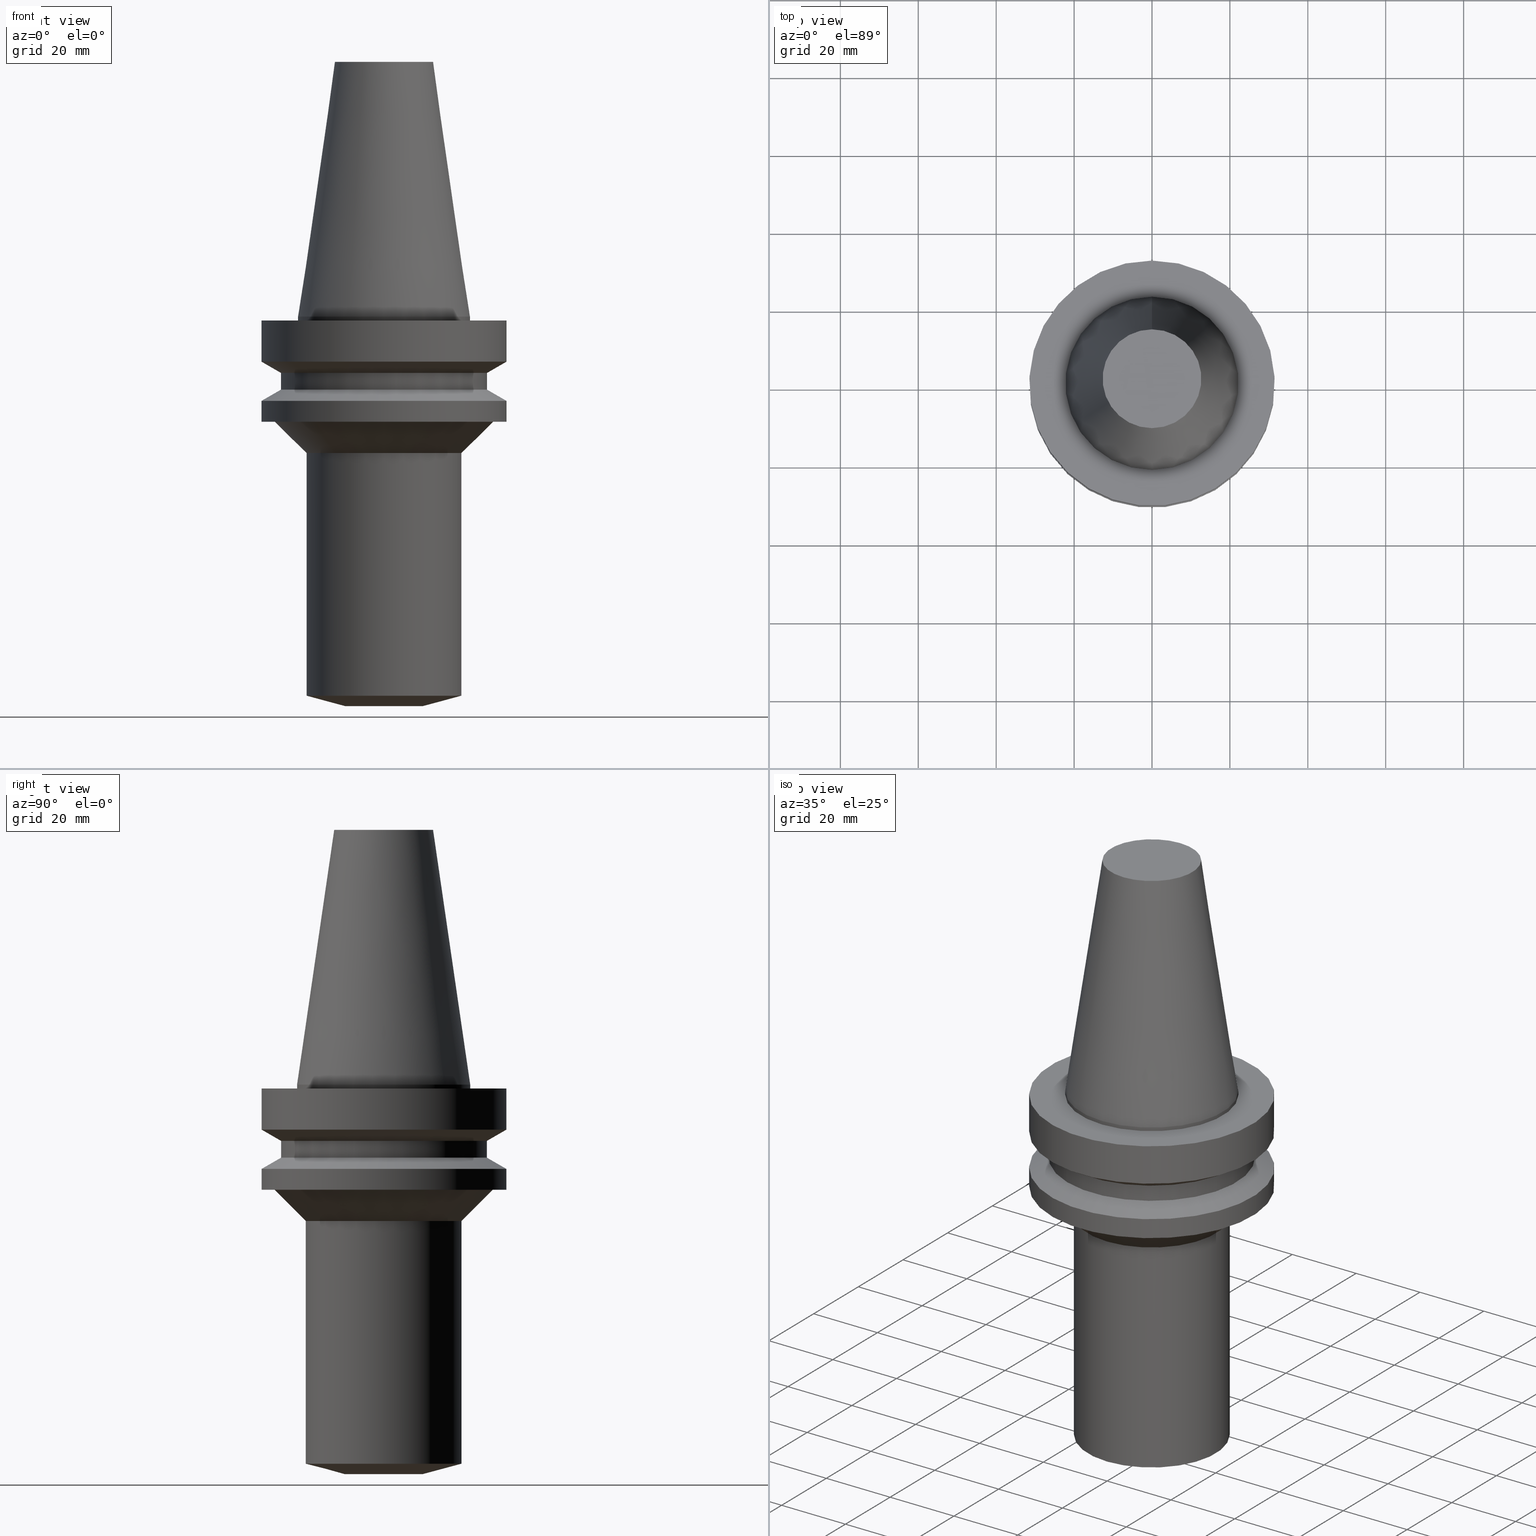
[diagram: canonical four-view strip — front | top / right | iso, engineering-drawing reading convention]
A machine part, canonical four-view strip (front | top / right | iso — engineering-drawing reading convention). The complete STEP part file that produces these views, byte-faithful:
ISO-10303-21;
HEADER;
FILE_DESCRIPTION((''),'1');
FILE_NAME('T:/21_DXF\X2\30C730FC30BF4F5C621057FA6E96\X0\/BBT40M-BSL16-100.stp','2017-05-09T05:51:11',(''),(''),'Spatial Interop R21 SP3','Kubotek KeyCreator 2011 V10.0.2 (22737)',' ');
FILE_SCHEMA(('automotive_design'));
ENDSEC;
DATA;
#1=MECHANICAL_DESIGN_GEOMETRIC_PRESENTATION_REPRESENTATION(' ',(#10,#11,#12,#13,#14,#15,#16,#17,#18,#19,#20,#21,#22,#23,#24,#25,#26,#27,#28,#29,#30,#31,#32,#33,#34,#35,#36,#37),#6);
#2=PRODUCT_DEFINITION_CONTEXT('',#38,'design');
#3=APPLICATION_PROTOCOL_DEFINITION('INTERNATIONAL STANDARD','automotive_design',1994,#38);
#4=PRODUCT_CATEGORY_RELATIONSHIP('NONE','NONE',#39,#40);
#5=SHAPE_DEFINITION_REPRESENTATION(#41,#42);
#6= (GEOMETRIC_REPRESENTATION_CONTEXT(3)GLOBAL_UNCERTAINTY_ASSIGNED_CONTEXT((#45))GLOBAL_UNIT_ASSIGNED_CONTEXT((#47,#48,#49))REPRESENTATION_CONTEXT('NONE','WORKSPACE'));
#10=STYLED_ITEM('',(#51),#52);
#11=STYLED_ITEM('',(#53),#54);
#12=STYLED_ITEM('',(#55),#56);
#13=STYLED_ITEM('',(#57,#58),#59);
#14=STYLED_ITEM('',(#60,#61),#62);
#15=STYLED_ITEM('',(#63),#64);
#16=STYLED_ITEM('',(#65),#66);
#17=STYLED_ITEM('',(#67),#68);
#18=STYLED_ITEM('',(#69,#70),#71);
#19=STYLED_ITEM('',(#72,#73),#74);
#20=STYLED_ITEM('',(#75),#76);
#21=STYLED_ITEM('',(#77,#78),#79);
#22=STYLED_ITEM('',(#80,#81),#82);
#23=STYLED_ITEM('',(#83,#84),#85);
#24=STYLED_ITEM('',(#86,#87),#88);
#25=STYLED_ITEM('',(#89,#90),#91);
#26=STYLED_ITEM('',(#92,#93),#94);
#27=STYLED_ITEM('',(#95,#96),#97);
#28=STYLED_ITEM('',(#98,#99),#100);
#29=STYLED_ITEM('',(#101,#102),#103);
#30=STYLED_ITEM('',(#104),#105);
#31=STYLED_ITEM('',(#106,#107),#108);
#32=STYLED_ITEM('',(#109),#110);
#33=STYLED_ITEM('',(#111),#112);
#34=STYLED_ITEM('',(#113),#114);
#35=STYLED_ITEM('',(#115,#116),#117);
#36=STYLED_ITEM('',(#118),#119);
#37=STYLED_ITEM('',(#120),#121);
#38=APPLICATION_CONTEXT(' ');
#39=PRODUCT_CATEGORY('part','NONE');
#40=PRODUCT_RELATED_PRODUCT_CATEGORY('detail',' ',(#122));
#41=PRODUCT_DEFINITION_SHAPE('NONE','NONE',#123);
#42=ADVANCED_BREP_SHAPE_REPRESENTATION('Unnamed[1]',(#85,#124),#6);
#45=UNCERTAINTY_MEASURE_WITH_UNIT(LENGTH_MEASURE(1.0E-006),#47,'','');
#47= (CONVERSION_BASED_UNIT('MILLIMETRE',#127)LENGTH_UNIT()NAMED_UNIT(#130));
#48= (NAMED_UNIT(#132)PLANE_ANGLE_UNIT()SI_UNIT($,.RADIAN.));
#49= (NAMED_UNIT(#132)SOLID_ANGLE_UNIT()SI_UNIT($,.STERADIAN.));
#51=PRESENTATION_STYLE_ASSIGNMENT((#138));
#52=EDGE_CURVE('Unnamed[1]',#139,#139,#140,.T.);
#53=PRESENTATION_STYLE_ASSIGNMENT((#141));
#54=EDGE_CURVE('Unnamed[1]',#142,#142,#143,.T.);
#55=PRESENTATION_STYLE_ASSIGNMENT((#144));
#56=EDGE_CURVE('Unnamed[1]',#145,#145,#146,.T.);
#57=PRESENTATION_STYLE_ASSIGNMENT((#147));
#58=PRESENTATION_STYLE_ASSIGNMENT((#148));
#59=ADVANCED_FACE('Unnamed[1]',(#149),#150,.T.);
#60=PRESENTATION_STYLE_ASSIGNMENT((#151));
#61=PRESENTATION_STYLE_ASSIGNMENT((#152));
#62=ADVANCED_FACE('Unnamed[1]',(#153,#154),#155,.T.);
#63=PRESENTATION_STYLE_ASSIGNMENT((#156));
#64=EDGE_CURVE('Unnamed[1]',#157,#157,#158,.T.);
#65=PRESENTATION_STYLE_ASSIGNMENT((#159));
#66=EDGE_CURVE('Unnamed[1]',#160,#160,#161,.T.);
#67=PRESENTATION_STYLE_ASSIGNMENT((#162));
#68=EDGE_CURVE('Unnamed[1]',#163,#163,#164,.T.);
#69=PRESENTATION_STYLE_ASSIGNMENT((#165));
#70=PRESENTATION_STYLE_ASSIGNMENT((#166));
#71=ADVANCED_FACE('Unnamed[1]',(#167,#168),#169,.T.);
#72=PRESENTATION_STYLE_ASSIGNMENT((#170));
#73=PRESENTATION_STYLE_ASSIGNMENT((#171));
#74=ADVANCED_FACE('Unnamed[1]',(#172,#173),#174,.T.);
#75=PRESENTATION_STYLE_ASSIGNMENT((#175));
#76=EDGE_CURVE('Unnamed[1]',#176,#176,#177,.T.);
#77=PRESENTATION_STYLE_ASSIGNMENT((#178));
#78=PRESENTATION_STYLE_ASSIGNMENT((#179));
#79=ADVANCED_FACE('Unnamed[1]',(#180,#181),#182,.T.);
#80=PRESENTATION_STYLE_ASSIGNMENT((#183));
#81=PRESENTATION_STYLE_ASSIGNMENT((#184));
#82=ADVANCED_FACE('Unnamed[1]',(#185,#186),#187,.T.);
#83=PRESENTATION_STYLE_ASSIGNMENT((#188));
#84=PRESENTATION_STYLE_ASSIGNMENT((#189));
#85=MANIFOLD_SOLID_BREP('Unnamed[1]',#190);
#86=PRESENTATION_STYLE_ASSIGNMENT((#191));
#87=PRESENTATION_STYLE_ASSIGNMENT((#192));
#88=ADVANCED_FACE('Unnamed[1]',(#193,#194),#195,.T.);
#89=PRESENTATION_STYLE_ASSIGNMENT((#196));
#90=PRESENTATION_STYLE_ASSIGNMENT((#197));
#91=ADVANCED_FACE('Unnamed[1]',(#198,#199),#200,.T.);
#92=PRESENTATION_STYLE_ASSIGNMENT((#201));
#93=PRESENTATION_STYLE_ASSIGNMENT((#202));
#94=ADVANCED_FACE('Unnamed[1]',(#203,#204),#205,.T.);
#95=PRESENTATION_STYLE_ASSIGNMENT((#206));
#96=PRESENTATION_STYLE_ASSIGNMENT((#207));
#97=ADVANCED_FACE('Unnamed[1]',(#208,#209),#210,.T.);
#98=PRESENTATION_STYLE_ASSIGNMENT((#211));
#99=PRESENTATION_STYLE_ASSIGNMENT((#212));
#100=ADVANCED_FACE('Unnamed[1]',(#213,#214),#215,.T.);
#101=PRESENTATION_STYLE_ASSIGNMENT((#216));
#102=PRESENTATION_STYLE_ASSIGNMENT((#217));
#103=ADVANCED_FACE('Unnamed[1]',(#218,#219),#220,.T.);
#104=PRESENTATION_STYLE_ASSIGNMENT((#221));
#105=EDGE_CURVE('Unnamed[1]',#222,#222,#223,.T.);
#106=PRESENTATION_STYLE_ASSIGNMENT((#224));
#107=PRESENTATION_STYLE_ASSIGNMENT((#225));
#108=ADVANCED_FACE('Unnamed[1]',(#226),#227,.T.);
#109=PRESENTATION_STYLE_ASSIGNMENT((#228));
#110=EDGE_CURVE('Unnamed[1]',#229,#229,#230,.T.);
#111=PRESENTATION_STYLE_ASSIGNMENT((#231));
#112=EDGE_CURVE('Unnamed[1]',#232,#232,#233,.T.);
#113=PRESENTATION_STYLE_ASSIGNMENT((#234));
#114=EDGE_CURVE('Unnamed[1]',#235,#235,#236,.T.);
#115=PRESENTATION_STYLE_ASSIGNMENT((#237));
#116=PRESENTATION_STYLE_ASSIGNMENT((#238));
#117=ADVANCED_FACE('Unnamed[1]',(#239,#240),#241,.T.);
#118=PRESENTATION_STYLE_ASSIGNMENT((#242));
#119=EDGE_CURVE('Unnamed[1]',#243,#243,#244,.T.);
#120=PRESENTATION_STYLE_ASSIGNMENT((#245));
#121=EDGE_CURVE('Unnamed[1]',#246,#246,#247,.T.);
#122=PRODUCT('Unnamed[1]','Unnamed[1]','PART-Unnamed[1]-DESC',(#248));
#123=PRODUCT_DEFINITION('NONE','NONE',#249,#2);
#124=AXIS2_PLACEMENT_3D('',#250,#251,#252);
#127=LENGTH_MEASURE_WITH_UNIT(LENGTH_MEASURE(1.0),#253);
#130=DIMENSIONAL_EXPONENTS(1.0,0.0,0.0,0.0,0.0,0.0,0.0);
#132=DIMENSIONAL_EXPONENTS(0.0,0.0,0.0,0.0,0.0,0.0,0.0);
#138=CURVE_STYLE('',#254,POSITIVE_LENGTH_MEASURE(1000.0),#255);
#139=VERTEX_POINT('',#256);
#140=CIRCLE('',#257,22.225);
#141=CURVE_STYLE('',#258,POSITIVE_LENGTH_MEASURE(1000.0),#259);
#142=VERTEX_POINT('',#260);
#143=CIRCLE('',#261,26.5);
#144=CURVE_STYLE('',#262,POSITIVE_LENGTH_MEASURE(1000.0),#263);
#145=VERTEX_POINT('',#264);
#146=CIRCLE('',#265,22.225);
#147=SURFACE_STYLE_USAGE(.BOTH.,#266);
#148=CURVE_STYLE('',#267,POSITIVE_LENGTH_MEASURE(1000.0),#268);
#149=FACE_OUTER_BOUND('',#269,.T.);
#150=PLANE('',#270);
#151=SURFACE_STYLE_USAGE(.BOTH.,#271);
#152=CURVE_STYLE('',#272,POSITIVE_LENGTH_MEASURE(1000.0),#273);
#153=FACE_BOUND('',#274,.T.);
#154=FACE_BOUND('',#275,.T.);
#155=CYLINDRICAL_SURFACE('',#276,22.225);
#156=CURVE_STYLE('',#277,POSITIVE_LENGTH_MEASURE(1000.0),#278);
#157=VERTEX_POINT('',#279);
#158=CIRCLE('',#280,31.5000000000004);
#159=CURVE_STYLE('',#281,POSITIVE_LENGTH_MEASURE(1000.0),#282);
#160=VERTEX_POINT('',#283);
#161=CIRCLE('',#284,31.5000000000007);
#162=CURVE_STYLE('',#285,POSITIVE_LENGTH_MEASURE(1000.0),#286);
#163=VERTEX_POINT('',#287);
#164=CIRCLE('',#288,28.0000000000002);
#165=SURFACE_STYLE_USAGE(.BOTH.,#289);
#166=CURVE_STYLE('',#290,POSITIVE_LENGTH_MEASURE(1000.0),#291);
#167=FACE_BOUND('',#292,.T.);
#168=FACE_BOUND('',#293,.T.);
#169=CYLINDRICAL_SURFACE('',#294,31.5000000000005);
#170=SURFACE_STYLE_USAGE(.BOTH.,#295);
#171=CURVE_STYLE('',#296,POSITIVE_LENGTH_MEASURE(1000.0),#297);
#172=FACE_BOUND('',#298,.T.);
#173=FACE_OUTER_BOUND('',#299,.T.);
#174=PLANE('',#300);
#175=CURVE_STYLE('',#301,POSITIVE_LENGTH_MEASURE(1000.0),#302);
#176=VERTEX_POINT('',#303);
#177=CIRCLE('',#304,20.0);
#178=SURFACE_STYLE_USAGE(.BOTH.,#305);
#179=CURVE_STYLE('',#306,POSITIVE_LENGTH_MEASURE(1000.0),#307);
#180=FACE_OUTER_BOUND('',#308,.T.);
#181=FACE_BOUND('',#309,.T.);
#182=PLANE('',#310);
#183=SURFACE_STYLE_USAGE(.BOTH.,#311);
#184=CURVE_STYLE('',#312,POSITIVE_LENGTH_MEASURE(1000.0),#313);
#185=FACE_BOUND('',#314,.T.);
#186=FACE_BOUND('',#315,.T.);
#187=CYLINDRICAL_SURFACE('',#316,26.4999999999997);
#188=SURFACE_STYLE_USAGE(.BOTH.,#317);
#189=CURVE_STYLE('',#318,POSITIVE_LENGTH_MEASURE(1000.0),#319);
#190=CLOSED_SHELL('',(#59,#97,#62,#79,#117,#100,#82,#94,#71,#74,#88,#91,#103,#108));
#191=SURFACE_STYLE_USAGE(.BOTH.,#320);
#192=CURVE_STYLE('',#321,POSITIVE_LENGTH_MEASURE(1000.0),#322);
#193=FACE_BOUND('',#323,.T.);
#194=FACE_BOUND('',#324,.T.);
#195=CONICAL_SURFACE('',#325,24.0000000000001,0.785398163397448);
#196=SURFACE_STYLE_USAGE(.BOTH.,#326);
#197=CURVE_STYLE('',#327,POSITIVE_LENGTH_MEASURE(1000.0),#328);
#198=FACE_BOUND('',#329,.T.);
#199=FACE_BOUND('',#330,.T.);
#200=CYLINDRICAL_SURFACE('',#331,20.0);
#201=SURFACE_STYLE_USAGE(.BOTH.,#332);
#202=CURVE_STYLE('',#333,POSITIVE_LENGTH_MEASURE(1000.0),#334);
#203=FACE_BOUND('',#335,.T.);
#204=FACE_BOUND('',#336,.T.);
#205=CONICAL_SURFACE('',#337,29.0000000000003,1.04719755119651);
#206=SURFACE_STYLE_USAGE(.BOTH.,#338);
#207=CURVE_STYLE('',#339,POSITIVE_LENGTH_MEASURE(1000.0),#340);
#208=FACE_BOUND('',#341,.T.);
#209=FACE_BOUND('',#342,.T.);
#210=CONICAL_SURFACE('',#343,17.4562500000001,0.144812498238936);
#211=SURFACE_STYLE_USAGE(.BOTH.,#344);
#212=CURVE_STYLE('',#345,POSITIVE_LENGTH_MEASURE(1000.0),#346);
#213=FACE_BOUND('',#347,.T.);
#214=FACE_BOUND('',#348,.T.);
#215=CONICAL_SURFACE('',#349,28.9999999999999,1.04719755119657);
#216=SURFACE_STYLE_USAGE(.BOTH.,#350);
#217=CURVE_STYLE('',#351,POSITIVE_LENGTH_MEASURE(1000.0),#352);
#218=FACE_BOUND('',#353,.T.);
#219=FACE_BOUND('',#354,.T.);
#220=CONICAL_SURFACE('',#355,15.0,1.3089969387368);
#221=CURVE_STYLE('',#356,POSITIVE_LENGTH_MEASURE(1000.0),#357);
#222=VERTEX_POINT('',#358);
#223=CIRCLE('',#359,20.0);
#224=SURFACE_STYLE_USAGE(.BOTH.,#360);
#225=CURVE_STYLE('',#361,POSITIVE_LENGTH_MEASURE(1000.0),#362);
#226=FACE_OUTER_BOUND('',#363,.T.);
#227=PLANE('',#364);
#228=CURVE_STYLE('',#365,POSITIVE_LENGTH_MEASURE(1000.0),#366);
#229=VERTEX_POINT('',#367);
#230=CIRCLE('',#368,31.5000000000003);
#231=CURVE_STYLE('',#369,POSITIVE_LENGTH_MEASURE(1000.0),#370);
#232=VERTEX_POINT('',#371);
#233=CIRCLE('',#372,12.6875000000001);
#234=CURVE_STYLE('',#373,POSITIVE_LENGTH_MEASURE(1000.0),#374);
#235=VERTEX_POINT('',#375);
#236=CIRCLE('',#376,26.4999999999994);
#237=SURFACE_STYLE_USAGE(.BOTH.,#377);
#238=CURVE_STYLE('',#378,POSITIVE_LENGTH_MEASURE(1000.0),#379);
#239=FACE_BOUND('',#380,.T.);
#240=FACE_BOUND('',#381,.T.);
#241=CYLINDRICAL_SURFACE('',#382,31.5);
#242=CURVE_STYLE('',#383,POSITIVE_LENGTH_MEASURE(1000.0),#384);
#243=VERTEX_POINT('',#385);
#244=CIRCLE('',#386,10.0);
#245=CURVE_STYLE('',#387,POSITIVE_LENGTH_MEASURE(1000.0),#388);
#246=VERTEX_POINT('',#389);
#247=CIRCLE('',#390,31.4999999999997);
#248=PRODUCT_CONTEXT('',#38,'mechanical');
#249=PRODUCT_DEFINITION_FORMATION_WITH_SPECIFIED_SOURCE(' ','NONE',#122,.NOT_KNOWN.);
#250=CARTESIAN_POINT('',(0.0,0.0,0.0));
#251=DIRECTION('',(0.0,0.0,1.0));
#252=DIRECTION('',(1.0,0.0,0.0));
#253= (NAMED_UNIT(#130)LENGTH_UNIT()SI_UNIT(.MILLI.,.METRE.));
#254=DRAUGHTING_PRE_DEFINED_CURVE_FONT('continuous');
#255=COLOUR_RGB('',0.0,1.0,0.0);
#256=CARTESIAN_POINT('',(6.12323399573604E-017,22.2250000000001,-0.999999999999884));
#257=AXIS2_PLACEMENT_3D('',#392,#393,#394);
#258=DRAUGHTING_PRE_DEFINED_CURVE_FONT('continuous');
#259=COLOUR_RGB('',0.0,1.0,0.0);
#260=CARTESIAN_POINT('',(1.1479681728942E-015,26.5,-18.7477430013855));
#261=AXIS2_PLACEMENT_3D('',#395,#396,#397);
#262=DRAUGHTING_PRE_DEFINED_CURVE_FONT('continuous');
#263=COLOUR_RGB('',0.0,1.0,0.0);
#264=CARTESIAN_POINT('',(1.71319921032766E-029,22.2250000000001,-2.8153873565375E-013));
#265=AXIS2_PLACEMENT_3D('',#398,#399,#400);
#266=SURFACE_SIDE_STYLE('',(#401));
#267=DRAUGHTING_PRE_DEFINED_CURVE_FONT('continuous');
#268=COLOUR_RGB('',0.0,1.0,0.0);
#269=EDGE_LOOP('',(#402));
#270=AXIS2_PLACEMENT_3D('',#403,#404,#405);
#271=SURFACE_SIDE_STYLE('',(#406));
#272=DRAUGHTING_PRE_DEFINED_CURVE_FONT('continuous');
#273=COLOUR_RGB('',0.0,1.0,0.0);
#274=EDGE_LOOP('',(#407));
#275=EDGE_LOOP('',(#408));
#276=AXIS2_PLACEMENT_3D('',#409,#410,#411);
#277=DRAUGHTING_PRE_DEFINED_CURVE_FONT('continuous');
#278=COLOUR_RGB('',0.0,1.0,0.0);
#279=CARTESIAN_POINT('',(1.65327317884891E-015,31.5000000000004,-26.9999999999997));
#280=AXIS2_PLACEMENT_3D('',#412,#413,#414);
#281=DRAUGHTING_PRE_DEFINED_CURVE_FONT('continuous');
#282=COLOUR_RGB('',0.0,1.0,0.0);
#283=CARTESIAN_POINT('',(1.32473071268174E-015,31.5000000000007,-21.6344943473346));
#284=AXIS2_PLACEMENT_3D('',#415,#416,#417);
#285=DRAUGHTING_PRE_DEFINED_CURVE_FONT('continuous');
#286=COLOUR_RGB('',0.0,1.0,0.0);
#287=CARTESIAN_POINT('',(1.65327317884891E-015,28.0000000000003,-26.9999999999997));
#288=AXIS2_PLACEMENT_3D('',#418,#419,#420);
#289=SURFACE_SIDE_STYLE('',(#421));
#290=DRAUGHTING_PRE_DEFINED_CURVE_FONT('continuous');
#291=COLOUR_RGB('',0.0,1.0,0.0);
#292=EDGE_LOOP('',(#422));
#293=EDGE_LOOP('',(#423));
#294=AXIS2_PLACEMENT_3D('',#424,#425,#426);
#295=SURFACE_SIDE_STYLE('',(#427));
#296=DRAUGHTING_PRE_DEFINED_CURVE_FONT('continuous');
#297=COLOUR_RGB('',0.0,1.0,0.0);
#298=EDGE_LOOP('',(#428));
#299=EDGE_LOOP('',(#429));
#300=AXIS2_PLACEMENT_3D('',#430,#431,#432);
#301=DRAUGHTING_PRE_DEFINED_CURVE_FONT('continuous');
#302=COLOUR_RGB('',0.0,1.0,0.0);
#303=CARTESIAN_POINT('',(2.14313189850787E-015,20.0,-35.0));
#304=AXIS2_PLACEMENT_3D('',#433,#434,#435);
#305=SURFACE_SIDE_STYLE('',(#436));
#306=DRAUGHTING_PRE_DEFINED_CURVE_FONT('continuous');
#307=COLOUR_RGB('',0.0,1.0,0.0);
#308=EDGE_LOOP('',(#437));
#309=EDGE_LOOP('',(#438));
#310=AXIS2_PLACEMENT_3D('',#439,#440,#441);
#311=SURFACE_SIDE_STYLE('',(#442));
#312=DRAUGHTING_PRE_DEFINED_CURVE_FONT('continuous');
#313=COLOUR_RGB('',0.0,1.0,0.0);
#314=EDGE_LOOP('',(#443));
#315=EDGE_LOOP('',(#444));
#316=AXIS2_PLACEMENT_3D('',#445,#446,#447);
#317=SURFACE_SIDE_STYLE('',(#448));
#318=DRAUGHTING_PRE_DEFINED_CURVE_FONT('continuous');
#319=COLOUR_RGB('',0.0,1.0,0.0);
#320=SURFACE_SIDE_STYLE('',(#449));
#321=DRAUGHTING_PRE_DEFINED_CURVE_FONT('continuous');
#322=COLOUR_RGB('',0.0,1.0,0.0);
#323=EDGE_LOOP('',(#450));
#324=EDGE_LOOP('',(#451));
#325=AXIS2_PLACEMENT_3D('',#452,#453,#454);
#326=SURFACE_SIDE_STYLE('',(#455));
#327=DRAUGHTING_PRE_DEFINED_CURVE_FONT('continuous');
#328=COLOUR_RGB('',0.0,1.0,0.0);
#329=EDGE_LOOP('',(#456));
#330=EDGE_LOOP('',(#457));
#331=AXIS2_PLACEMENT_3D('',#458,#459,#460);
#332=SURFACE_SIDE_STYLE('',(#461));
#333=DRAUGHTING_PRE_DEFINED_CURVE_FONT('continuous');
#334=COLOUR_RGB('',0.0,1.0,0.0);
#335=EDGE_LOOP('',(#462));
#336=EDGE_LOOP('',(#463));
#337=AXIS2_PLACEMENT_3D('',#464,#465,#466);
#338=SURFACE_SIDE_STYLE('',(#467));
#339=DRAUGHTING_PRE_DEFINED_CURVE_FONT('continuous');
#340=COLOUR_RGB('',0.0,1.0,0.0);
#341=EDGE_LOOP('',(#468));
#342=EDGE_LOOP('',(#469));
#343=AXIS2_PLACEMENT_3D('',#470,#471,#472);
#344=SURFACE_SIDE_STYLE('',(#473));
#345=DRAUGHTING_PRE_DEFINED_CURVE_FONT('continuous');
#346=COLOUR_RGB('',0.0,1.0,0.0);
#347=EDGE_LOOP('',(#474));
#348=EDGE_LOOP('',(#475));
#349=AXIS2_PLACEMENT_3D('',#476,#477,#478);
#350=SURFACE_SIDE_STYLE('',(#479));
#351=DRAUGHTING_PRE_DEFINED_CURVE_FONT('continuous');
#352=COLOUR_RGB('',0.0,1.0,0.0);
#353=EDGE_LOOP('',(#480));
#354=EDGE_LOOP('',(#481));
#355=AXIS2_PLACEMENT_3D('',#482,#483,#484);
#356=DRAUGHTING_PRE_DEFINED_CURVE_FONT('continuous');
#357=COLOUR_RGB('',0.0,1.0,0.0);
#358=CARTESIAN_POINT('',(5.95916243514438E-015,20.0,-97.3205080729134));
#359=AXIS2_PLACEMENT_3D('',#485,#486,#487);
#360=SURFACE_SIDE_STYLE('',(#488));
#361=DRAUGHTING_PRE_DEFINED_CURVE_FONT('continuous');
#362=COLOUR_RGB('',0.0,1.0,0.0);
#363=EDGE_LOOP('',(#489));
#364=AXIS2_PLACEMENT_3D('',#490,#491,#492);
#365=DRAUGHTING_PRE_DEFINED_CURVE_FONT('continuous');
#366=COLOUR_RGB('',0.0,1.0,0.0);
#367=CARTESIAN_POINT('',(7.08182973902923E-016,31.5000000000004,-11.5655056526664));
#368=AXIS2_PLACEMENT_3D('',#493,#494,#495);
#369=DRAUGHTING_PRE_DEFINED_CURVE_FONT('continuous');
#370=COLOUR_RGB('',0.0,1.0,0.0);
#371=CARTESIAN_POINT('',(-4.00459503321185E-015,12.6875000000002,65.4000000000001));
#372=AXIS2_PLACEMENT_3D('',#496,#497,#498);
#373=DRAUGHTING_PRE_DEFINED_CURVE_FONT('continuous');
#374=COLOUR_RGB('',0.0,1.0,0.0);
#375=CARTESIAN_POINT('',(8.8494551369045E-016,26.4999999999995,-14.4522569986152));
#376=AXIS2_PLACEMENT_3D('',#499,#500,#501);
#377=SURFACE_SIDE_STYLE('',(#502));
#378=DRAUGHTING_PRE_DEFINED_CURVE_FONT('continuous');
#379=COLOUR_RGB('',0.0,1.0,0.0);
#380=EDGE_LOOP('',(#503));
#381=EDGE_LOOP('',(#504));
#382=AXIS2_PLACEMENT_3D('',#505,#506,#507);
#383=DRAUGHTING_PRE_DEFINED_CURVE_FONT('continuous');
#384=COLOUR_RGB('',0.0,1.0,0.0);
#385=CARTESIAN_POINT('',(6.12323399573677E-015,10.0,-100.0));
#386=AXIS2_PLACEMENT_3D('',#508,#509,#510);
#387=DRAUGHTING_PRE_DEFINED_CURVE_FONT('continuous');
#388=COLOUR_RGB('',0.0,1.0,0.0);
#389=CARTESIAN_POINT('',(6.12323399573568E-017,31.4999999999997,-0.999999999999825));
#390=AXIS2_PLACEMENT_3D('',#511,#512,#513);
#392=CARTESIAN_POINT('',(6.12323399573598E-017,3.985640414583E-014,-0.999999999999872));
#393=DIRECTION('',(6.12323399573677E-017,-5.53589630679993E-016,-1.0));
#394=DIRECTION('',(2.90704357319019E-032,1.0,-5.53589630679993E-016));
#395=CARTESIAN_POINT('',(1.1479681728942E-015,3.00314376522895E-014,-18.7477430013855));
#396=DIRECTION('',(6.12323399573677E-017,-5.53589630679993E-016,-1.0));
#397=DIRECTION('',(2.90704357319019E-032,1.0,-5.53589630679993E-016));
#398=CARTESIAN_POINT('',(1.65331138531142E-029,4.04099937765097E-014,-2.70006239588838E-013));
#399=DIRECTION('',(6.12323399573677E-017,-5.53589630679993E-016,-1.0));
#400=DIRECTION('',(2.90704357319019E-032,1.0,-5.53589630679993E-016));
#401=SURFACE_STYLE_FILL_AREA(#514);
#402=ORIENTED_EDGE('',*,*,#112,.F.);
#403=CARTESIAN_POINT('',(-4.00459503321185E-015,6.34375000000014,65.4000000000001));
#404=DIRECTION('',(-6.12323399573677E-017,-1.22464679914735E-016,1.0));
#405=DIRECTION('',(1.23259516440783E-032,-1.0,-1.22464679914735E-016));
#406=SURFACE_STYLE_FILL_AREA(#515);
#407=ORIENTED_EDGE('',*,*,#52,.F.);
#408=ORIENTED_EDGE('',*,*,#56,.T.);
#409=CARTESIAN_POINT('',(3.06161699786882E-017,4.01331989611698E-014,-0.500000000000071));
#410=DIRECTION('',(6.12323399573677E-017,-5.53589630679993E-016,-1.0));
#411=DIRECTION('',(2.90704357319019E-032,1.0,-5.53589630679993E-016));
#412=CARTESIAN_POINT('',(1.65327317884891E-015,2.54630737481502E-014,-26.9999999999997));
#413=DIRECTION('',(6.12323399573677E-017,-5.53589630679993E-016,-1.0));
#414=DIRECTION('',(2.90704357319019E-032,1.0,-5.53589630679993E-016));
#415=CARTESIAN_POINT('',(1.32473071268174E-015,2.84333620408205E-014,-21.6344943473346));
#416=DIRECTION('',(6.12323399573677E-017,-5.53589630679993E-016,-1.0));
#417=DIRECTION('',(2.90704357319019E-032,1.0,-5.53589630679993E-016));
#418=CARTESIAN_POINT('',(1.65327317884891E-015,2.54630737481502E-014,-26.9999999999997));
#419=DIRECTION('',(6.12323399573676E-017,-5.53589630679993E-016,-1.0));
#420=DIRECTION('',(2.90704357319019E-032,1.0,-5.53589630679993E-016));
#421=SURFACE_STYLE_FILL_AREA(#516);
#422=ORIENTED_EDGE('',*,*,#64,.F.);
#423=ORIENTED_EDGE('',*,*,#66,.T.);
#424=CARTESIAN_POINT('',(1.48900194576533E-015,2.69482178944854E-014,-24.3172471736672));
#425=DIRECTION('',(6.12323399573677E-017,-5.53589630679993E-016,-1.0));
#426=DIRECTION('',(2.90704357319019E-032,1.0,-5.53589630679993E-016));
#427=SURFACE_STYLE_FILL_AREA(#517);
#428=ORIENTED_EDGE('',*,*,#68,.F.);
#429=ORIENTED_EDGE('',*,*,#64,.T.);
#430=CARTESIAN_POINT('',(1.65327317884891E-015,29.7500000000003,-26.9999999999997));
#431=DIRECTION('',(6.12323399573677E-017,3.16764783317221E-015,-1.0));
#432=DIRECTION('',(-1.98789641716789E-031,1.0,3.16764783317221E-015));
#433=CARTESIAN_POINT('',(2.14313189850787E-015,2.10343567027101E-014,-35.0));
#434=DIRECTION('',(6.12323399573677E-017,-5.53589630679993E-016,-1.0));
#435=DIRECTION('',(2.90704357319019E-032,1.0,-5.53589630679993E-016));
#436=SURFACE_STYLE_FILL_AREA(#518);
#437=ORIENTED_EDGE('',*,*,#121,.F.);
#438=ORIENTED_EDGE('',*,*,#52,.T.);
#439=CARTESIAN_POINT('',(6.12323399573586E-017,26.8624999999999,-0.999999999999855));
#440=DIRECTION('',(-6.12323399573677E-017,-6.28704535573121E-015,1.0));
#441=DIRECTION('',(3.89797651280292E-031,-1.0,-6.28704535573121E-015));
#442=SURFACE_STYLE_FILL_AREA(#519);
#443=ORIENTED_EDGE('',*,*,#54,.F.);
#444=ORIENTED_EDGE('',*,*,#114,.T.);
#445=CARTESIAN_POINT('',(1.01645684329232E-015,3.12204059072218E-014,-16.6000000000003));
#446=DIRECTION('',(6.12323399573677E-017,-5.53589630679993E-016,-1.0));
#447=DIRECTION('',(2.90704357319019E-032,1.0,-5.53589630679993E-016));
#448=SURFACE_STYLE_FILL_AREA(#520);
#449=SURFACE_STYLE_FILL_AREA(#521);
#450=ORIENTED_EDGE('',*,*,#76,.F.);
#451=ORIENTED_EDGE('',*,*,#68,.T.);
#452=CARTESIAN_POINT('',(1.89820253867839E-015,2.32487152254302E-014,-30.9999999999998));
#453=DIRECTION('',(-6.12323399573677E-017,5.53589630679993E-016,1.0));
#454=DIRECTION('',(2.90704357319019E-032,1.0,-5.53589630679993E-016));
#455=SURFACE_STYLE_FILL_AREA(#522);
#456=ORIENTED_EDGE('',*,*,#105,.F.);
#457=ORIENTED_EDGE('',*,*,#76,.T.);
#458=CARTESIAN_POINT('',(4.05114716682612E-015,3.78436317877328E-015,-66.1602540364567));
#459=DIRECTION('',(6.12323399573677E-017,-5.53589630679993E-016,-1.0));
#460=DIRECTION('',(2.90704357319019E-032,1.0,-5.53589630679993E-016));
#461=SURFACE_STYLE_FILL_AREA(#523);
#462=ORIENTED_EDGE('',*,*,#66,.F.);
#463=ORIENTED_EDGE('',*,*,#54,.T.);
#464=CARTESIAN_POINT('',(1.23634944278797E-015,2.9232399846555E-014,-20.1911186743601));
#465=DIRECTION('',(6.12323399573677E-017,-5.53589630679993E-016,-1.0));
#466=DIRECTION('',(2.90704357319019E-032,1.0,-5.53589630679993E-016));
#467=SURFACE_STYLE_FILL_AREA(#524);
#468=ORIENTED_EDGE('',*,*,#56,.F.);
#469=ORIENTED_EDGE('',*,*,#112,.T.);
#470=CARTESIAN_POINT('',(-2.00229751660592E-015,5.85123746997456E-014,32.6999999999999));
#471=DIRECTION('',(6.12323399573677E-017,-5.53589630679993E-016,-1.0));
#472=DIRECTION('',(2.90704357319019E-032,1.0,-5.53589630679993E-016));
#473=SURFACE_STYLE_FILL_AREA(#525);
#474=ORIENTED_EDGE('',*,*,#114,.F.);
#475=ORIENTED_EDGE('',*,*,#110,.T.);
#476=CARTESIAN_POINT('',(7.96564243796687E-016,3.32084119678886E-014,-13.0088813256408));
#477=DIRECTION('',(-6.12323399573677E-017,5.53589630679993E-016,1.0));
#478=DIRECTION('',(2.90704357319019E-032,1.0,-5.53589630679993E-016));
#479=SURFACE_STYLE_FILL_AREA(#526);
#480=ORIENTED_EDGE('',*,*,#119,.F.);
#481=ORIENTED_EDGE('',*,*,#105,.T.);
#482=CARTESIAN_POINT('',(6.04119821544057E-015,-1.42072998183265E-014,-98.6602540364567));
#483=DIRECTION('',(-6.12323399573677E-017,5.53589630679993E-016,1.0));
#484=DIRECTION('',(2.90704357319019E-032,1.0,-5.53589630679993E-016));
#485=CARTESIAN_POINT('',(5.95916243514438E-015,-1.34656303451636E-014,-97.3205080729134));
#486=DIRECTION('',(6.12323399573676E-017,-5.53589630679993E-016,-1.0));
#487=DIRECTION('',(2.90704357319019E-032,1.0,-5.53589630679993E-016));
#488=SURFACE_STYLE_FILL_AREA(#527);
#489=ORIENTED_EDGE('',*,*,#119,.T.);
#490=CARTESIAN_POINT('',(6.12323399573677E-015,5.0,-100.0));
#491=DIRECTION('',(6.12323399573677E-017,1.22464679914735E-016,-1.0));
#492=DIRECTION('',(-1.23259516440783E-032,1.0,1.22464679914735E-016));
#493=CARTESIAN_POINT('',(7.08182973902923E-016,3.40074497736229E-014,-11.5655056526663));
#494=DIRECTION('',(6.12323399573677E-017,-5.53589630679993E-016,-1.0));
#495=DIRECTION('',(2.90704357319019E-032,1.0,-5.53589630679993E-016));
#496=CARTESIAN_POINT('',(-4.00459503321185E-015,7.66147556229815E-014,65.4000000000001));
#497=DIRECTION('',(6.12323399573677E-017,-5.53589630679993E-016,-1.0));
#498=DIRECTION('',(2.90704357319019E-032,1.0,-5.53589630679993E-016));
#499=CARTESIAN_POINT('',(8.8494551369045E-016,3.24093741621542E-014,-14.4522569986152));
#500=DIRECTION('',(6.12323399573677E-017,-5.53589630679993E-016,-1.0));
#501=DIRECTION('',(2.90704357319019E-032,1.0,-5.53589630679993E-016));
#502=SURFACE_STYLE_FILL_AREA(#528);
#503=ORIENTED_EDGE('',*,*,#110,.F.);
#504=ORIENTED_EDGE('',*,*,#121,.T.);
#505=CARTESIAN_POINT('',(3.8470765693014E-016,3.69319269597265E-014,-6.28275282633308));
#506=DIRECTION('',(6.12323399573677E-017,-5.53589630679993E-016,-1.0));
#507=DIRECTION('',(2.90704357319019E-032,1.0,-5.53589630679993E-016));
#508=CARTESIAN_POINT('',(6.12323399573677E-015,-1.49489692914894E-014,-100.0));
#509=DIRECTION('',(6.12323399573676E-017,-5.53589630679993E-016,-1.0));
#510=DIRECTION('',(2.90704357319019E-032,1.0,-5.53589630679993E-016));
#511=CARTESIAN_POINT('',(6.12323399573563E-017,3.985640414583E-014,-0.999999999999815));
#512=DIRECTION('',(6.12323399573677E-017,-5.53589630679993E-016,-1.0));
#513=DIRECTION('',(2.90704357319019E-032,1.0,-5.53589630679993E-016));
#514=FILL_AREA_STYLE('',(#529));
#515=FILL_AREA_STYLE('',(#530));
#516=FILL_AREA_STYLE('',(#531));
#517=FILL_AREA_STYLE('',(#532));
#518=FILL_AREA_STYLE('',(#533));
#519=FILL_AREA_STYLE('',(#534));
#520=FILL_AREA_STYLE('',(#535));
#521=FILL_AREA_STYLE('',(#536));
#522=FILL_AREA_STYLE('',(#537));
#523=FILL_AREA_STYLE('',(#538));
#524=FILL_AREA_STYLE('',(#539));
#525=FILL_AREA_STYLE('',(#540));
#526=FILL_AREA_STYLE('',(#541));
#527=FILL_AREA_STYLE('',(#542));
#528=FILL_AREA_STYLE('',(#543));
#529=FILL_AREA_STYLE_COLOUR('',#544);
#530=FILL_AREA_STYLE_COLOUR('',#545);
#531=FILL_AREA_STYLE_COLOUR('',#546);
#532=FILL_AREA_STYLE_COLOUR('',#547);
#533=FILL_AREA_STYLE_COLOUR('',#548);
#534=FILL_AREA_STYLE_COLOUR('',#549);
#535=FILL_AREA_STYLE_COLOUR('',#550);
#536=FILL_AREA_STYLE_COLOUR('',#551);
#537=FILL_AREA_STYLE_COLOUR('',#552);
#538=FILL_AREA_STYLE_COLOUR('',#553);
#539=FILL_AREA_STYLE_COLOUR('',#554);
#540=FILL_AREA_STYLE_COLOUR('',#555);
#541=FILL_AREA_STYLE_COLOUR('',#556);
#542=FILL_AREA_STYLE_COLOUR('',#557);
#543=FILL_AREA_STYLE_COLOUR('',#558);
#544=COLOUR_RGB('',0.0,1.0,0.0);
#545=COLOUR_RGB('',0.0,1.0,0.0);
#546=COLOUR_RGB('',0.0,1.0,0.0);
#547=COLOUR_RGB('',0.0,1.0,0.0);
#548=COLOUR_RGB('',0.0,1.0,0.0);
#549=COLOUR_RGB('',0.0,1.0,0.0);
#550=COLOUR_RGB('',0.0,1.0,0.0);
#551=COLOUR_RGB('',0.0,1.0,0.0);
#552=COLOUR_RGB('',0.0,1.0,0.0);
#553=COLOUR_RGB('',0.0,1.0,0.0);
#554=COLOUR_RGB('',0.0,1.0,0.0);
#555=COLOUR_RGB('',0.0,1.0,0.0);
#556=COLOUR_RGB('',0.0,1.0,0.0);
#557=COLOUR_RGB('',0.0,1.0,0.0);
#558=COLOUR_RGB('',0.0,1.0,0.0);
ENDSEC;
END-ISO-10303-21;
